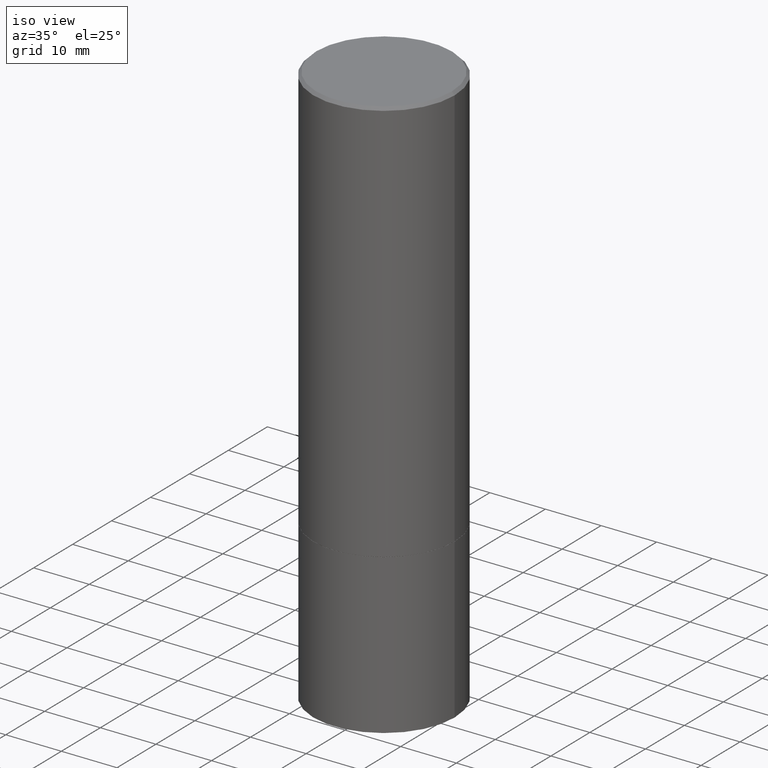
[diagram: clean part render]
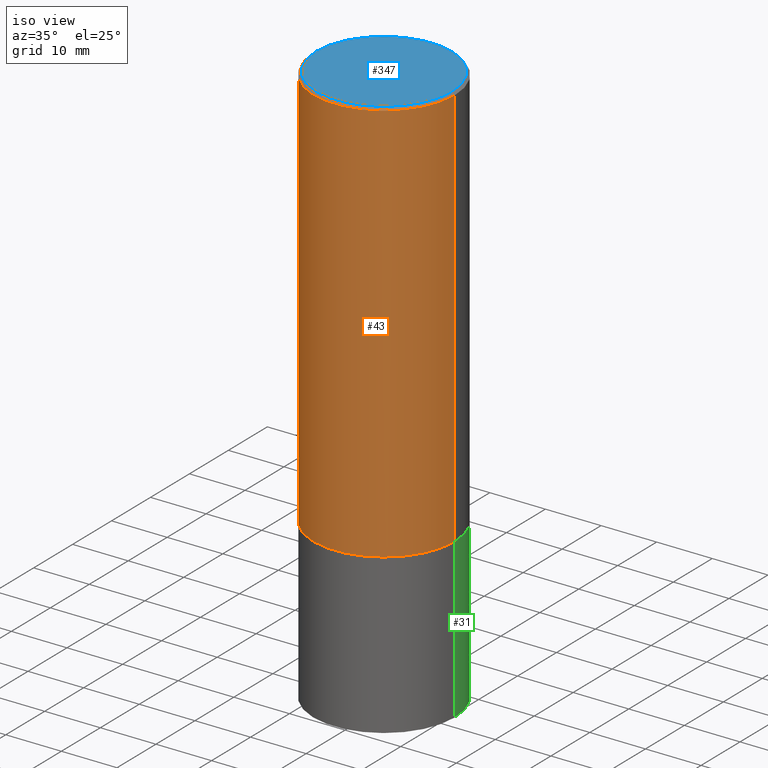
[diagram: same view with three faces highlighted in distinct colors, each labeled with its STEP entity id]
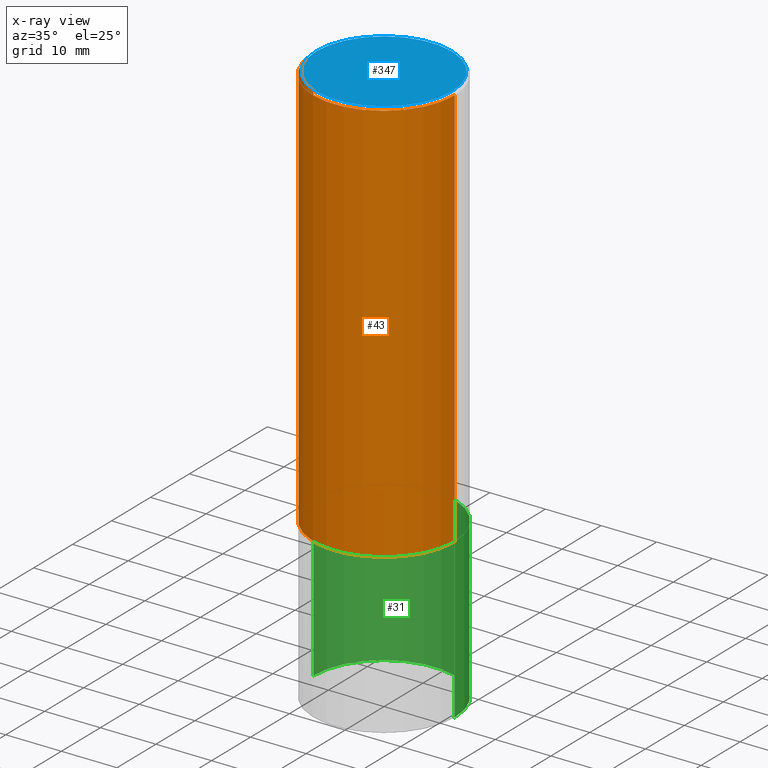
[diagram: x-ray of the same camera — body ghosted, the three highlighted faces saturated]
A machine part, iso view with three faces highlighted in distinct colors.
The next image is the same camera in x-ray (body ghosted, the three faces saturated) — at least one of them is partly hidden behind the body in this view.
Their STEP definitions:

[orange] entity #43 — the highlighted cylindrical surface (partial cylindrical patch) has radius 12.7 mm, axis along (-0, 0, 1).
#6 = CARTESIAN_POINT ( 'NONE',  ( -0.5000000000000000000, -1.499459818505530375E-15, -2.874000000000000110 ) ) ;
#21 = LINE ( 'NONE', #75, #171 ) ;
#25 = LINE ( 'NONE', #166, #220 ) ;
#33 = VERTEX_POINT ( 'NONE', #6 ) ;
#35 = CARTESIAN_POINT ( 'NONE',  ( 7.028277348976082113E-29, -1.003451736783520168E-14, -2.874000000000000110 ) ) ;
#39 = DIRECTION ( 'NONE',  ( 1.000000000000000000, -6.982962677686266711E-15, 0.000000000000000000 ) ) ;
#43 = ADVANCED_FACE ( 'NONE', ( #118 ), #230, .T. ) ;
#52 = EDGE_LOOP ( 'NONE', ( #262, #249, #80, #284 ) ) ;
#66 = CARTESIAN_POINT ( 'NONE',  ( 0.000000000000000000, 0.000000000000000000, 0.000000000000000000 ) ) ;
#68 = DIRECTION ( 'NONE',  ( -2.445468806185136597E-29, 3.491481338843145583E-15, 1.000000000000000000 ) ) ;
#75 = CARTESIAN_POINT ( 'NONE',  ( -0.4999999999999998335, 3.552713678800499746E-15, -2.459467545127452330E-29 ) ) ;
#80 = ORIENTED_EDGE ( 'NONE', *, *, #162, .T. ) ;
#95 = DIRECTION ( 'NONE',  ( 1.000000000000000000, -6.982962677686267499E-15, 4.876176775795936353E-29 ) ) ;
#106 = AXIS2_PLACEMENT_3D ( 'NONE', #66, #297, #95 ) ;
#118 = FACE_OUTER_BOUND ( 'NONE', #52, .T. ) ;
#119 = EDGE_CURVE ( 'NONE', #33, #140, #331, .T. ) ;
#132 = CARTESIAN_POINT ( 'NONE',  ( 0.4999999999999996669, -3.500078625662626713E-15, -0.02000000000000009062 ) ) ;
#137 = DIRECTION ( 'NONE',  ( -2.445468806185136877E-29, 3.491481338843145188E-15, 1.000000000000000000 ) ) ;
#140 = VERTEX_POINT ( 'NONE', #167 ) ;
#152 = EDGE_CURVE ( 'NONE', #33, #307, #21, .T. ) ;
#162 = EDGE_CURVE ( 'NONE', #140, #330, #25, .T. ) ;
#166 = CARTESIAN_POINT ( 'NONE',  ( 0.4999999999999998335, -3.491481338843132566E-15, 2.438088387897967336E-29 ) ) ;
#167 = CARTESIAN_POINT ( 'NONE',  ( 0.5000000000000000000, -1.352599870667833503E-14, -2.874000000000000110 ) ) ;
#169 = AXIS2_PLACEMENT_3D ( 'NONE', #35, #235, #341 ) ;
#171 = VECTOR ( 'NONE', #137, 39.37007874015748143 ) ;
#185 = CARTESIAN_POINT ( 'NONE',  ( -0.4999999999999996669, 3.421651712066267691E-15, -0.02000000000000009062 ) ) ;
#220 = VECTOR ( 'NONE', #222, 39.37007874015748143 ) ;
#222 = DIRECTION ( 'NONE',  ( -2.445468806185136877E-29, 3.491481338843145188E-15, 1.000000000000000000 ) ) ;
#229 = CIRCLE ( 'NONE', #281, 0.4999999999999996669 ) ;
#230 = CYLINDRICAL_SURFACE ( 'NONE', #106, 0.4999999999999998335 ) ;
#235 = DIRECTION ( 'NONE',  ( -2.445468806185136597E-29, 3.491481338843145583E-15, 1.000000000000000000 ) ) ;
#249 = ORIENTED_EDGE ( 'NONE', *, *, #119, .T. ) ;
#262 = ORIENTED_EDGE ( 'NONE', *, *, #152, .F. ) ;
#272 = EDGE_CURVE ( 'NONE', #307, #330, #229, .T. ) ;
#281 = AXIS2_PLACEMENT_3D ( 'NONE', #321, #68, #39 ) ;
#284 = ORIENTED_EDGE ( 'NONE', *, *, #272, .F. ) ;
#297 = DIRECTION ( 'NONE',  ( -2.445468806185136597E-29, 3.491481338843145583E-15, 1.000000000000000000 ) ) ;
#307 = VERTEX_POINT ( 'NONE', #185 ) ;
#321 = CARTESIAN_POINT ( 'NONE',  ( 4.890937612370295054E-31, -6.982962677686322424E-17, -0.02000000000000009062 ) ) ;
#330 = VERTEX_POINT ( 'NONE', #132 ) ;
#331 = CIRCLE ( 'NONE', #169, 0.5000000000000000000 ) ;
#341 = DIRECTION ( 'NONE',  ( 1.000000000000000000, -6.982962677686266711E-15, 0.000000000000000000 ) ) ;

[blue] entity #347 — the highlighted planar face has unit normal (0, -0, -1).
#14 = CARTESIAN_POINT ( 'NONE',  ( -3.131554243005659264E-46, 4.471029511141341874E-32, 1.280553747030123384E-17 ) ) ;
#19 = DIRECTION ( 'NONE',  ( -2.445468806185136597E-29, 3.491481338843145583E-15, 1.000000000000000000 ) ) ;
#51 = CIRCLE ( 'NONE', #117, 0.4799999999999995937 ) ;
#69 = DIRECTION ( 'NONE',  ( 1.000000000000000000, -6.982962677686266711E-15, 4.876036955247133327E-29 ) ) ;
#70 = EDGE_CURVE ( 'NONE', #127, #191, #84, .T. ) ;
#84 = CIRCLE ( 'NONE', #311, 0.4799999999999995937 ) ;
#117 = AXIS2_PLACEMENT_3D ( 'NONE', #14, #19, #328 ) ;
#126 = DIRECTION ( 'NONE',  ( 2.438088387897960049E-29, -3.491481338843145188E-15, -1.000000000000000000 ) ) ;
#127 = VERTEX_POINT ( 'NONE', #181 ) ;
#128 = AXIS2_PLACEMENT_3D ( 'NONE', #350, #126, #354 ) ;
#164 = FACE_OUTER_BOUND ( 'NONE', #306, .T. ) ;
#181 = CARTESIAN_POINT ( 'NONE',  ( 0.4799999999999995937, -3.396558832296479732E-15, 1.280553747032483033E-17 ) ) ;
#191 = VERTEX_POINT ( 'NONE', #336 ) ;
#203 = CARTESIAN_POINT ( 'NONE',  ( -3.131554243005659264E-46, 4.471029511141341874E-32, 1.280553747030123384E-17 ) ) ;
#252 = PLANE ( 'NONE',  #128 ) ;
#253 = ORIENTED_EDGE ( 'NONE', *, *, #70, .T. ) ;
#265 = ORIENTED_EDGE ( 'NONE', *, *, #293, .T. ) ;
#275 = DIRECTION ( 'NONE',  ( -2.445468806185136597E-29, 3.491481338843145583E-15, 1.000000000000000000 ) ) ;
#293 = EDGE_CURVE ( 'NONE', #191, #127, #51, .T. ) ;
#306 = EDGE_LOOP ( 'NONE', ( #265, #253 ) ) ;
#311 = AXIS2_PLACEMENT_3D ( 'NONE', #203, #275, #69 ) ;
#328 = DIRECTION ( 'NONE',  ( 1.000000000000000000, -6.982962677686266711E-15, 4.876036955247133327E-29 ) ) ;
#336 = CARTESIAN_POINT ( 'NONE',  ( -0.4799999999999995937, 3.386736898677836436E-15, 1.280553747027767124E-17 ) ) ;
#347 = ADVANCED_FACE ( 'NONE', ( #164 ), #252, .F. ) ;
#350 = CARTESIAN_POINT ( 'NONE',  ( 3.351822085289404787E-15, 0.4799999999999995937, -1.669508273909557867E-15 ) ) ;
#354 = DIRECTION ( 'NONE',  ( -1.000000000000000000, 6.982962677686265922E-15, -4.876176775795935793E-29 ) ) ;

[green] entity #31 — the highlighted cylindrical surface (partial cylindrical patch) has radius 12.7 mm, axis along (-0, 0, 1).
#8 = CARTESIAN_POINT ( 'NONE',  ( -0.5000000000000000000, 3.552713678800500929E-15, -2.459467545127452891E-29 ) ) ;
#13 = VERTEX_POINT ( 'NONE', #309 ) ;
#17 = DIRECTION ( 'NONE',  ( 1.000000000000000000, -6.982962677686266711E-15, 0.000000000000000000 ) ) ;
#31 = ADVANCED_FACE ( 'NONE', ( #332 ), #79, .T. ) ;
#53 = VECTOR ( 'NONE', #324, 39.37007874015748143 ) ;
#57 = DIRECTION ( 'NONE',  ( 1.000000000000000000, -6.982962677686266711E-15, 4.876176775795935793E-29 ) ) ;
#61 = EDGE_CURVE ( 'NONE', #213, #130, #161, .T. ) ;
#65 = CARTESIAN_POINT ( 'NONE',  ( 0.5000000000000000000, -1.745740669421571411E-14, -4.000000000000000000 ) ) ;
#79 = CYLINDRICAL_SURFACE ( 'NONE', #112, 0.5000000000000000000 ) ;
#81 = EDGE_CURVE ( 'NONE', #13, #174, #270, .T. ) ;
#90 = CARTESIAN_POINT ( 'NONE',  ( 0.5000000000000000000, -3.491481338843133355E-15, 2.438088387897967896E-29 ) ) ;
#92 = CIRCLE ( 'NONE', #182, 0.5000000000000000000 ) ;
#109 = ORIENTED_EDGE ( 'NONE', *, *, #358, .T. ) ;
#112 = AXIS2_PLACEMENT_3D ( 'NONE', #316, #337, #57 ) ;
#130 = VERTEX_POINT ( 'NONE', #351 ) ;
#143 = ORIENTED_EDGE ( 'NONE', *, *, #81, .T. ) ;
#151 = DIRECTION ( 'NONE',  ( -2.445468806185136877E-29, 3.491481338843145188E-15, 1.000000000000000000 ) ) ;
#161 = LINE ( 'NONE', #90, #215 ) ;
#163 = EDGE_LOOP ( 'NONE', ( #109, #143, #239, #241 ) ) ;
#174 = VERTEX_POINT ( 'NONE', #224 ) ;
#178 = CIRCLE ( 'NONE', #301, 0.5000000000000000000 ) ;
#182 = AXIS2_PLACEMENT_3D ( 'NONE', #318, #238, #348 ) ;
#213 = VERTEX_POINT ( 'NONE', #65 ) ;
#215 = VECTOR ( 'NONE', #151, 39.37007874015748143 ) ;
#224 = CARTESIAN_POINT ( 'NONE',  ( -0.5000000000000000000, -8.449253423472813367E-15, -2.875000000000000000 ) ) ;
#238 = DIRECTION ( 'NONE',  ( -2.445468806185136597E-29, 3.491481338843145583E-15, 1.000000000000000000 ) ) ;
#239 = ORIENTED_EDGE ( 'NONE', *, *, #259, .F. ) ;
#241 = ORIENTED_EDGE ( 'NONE', *, *, #61, .F. ) ;
#259 = EDGE_CURVE ( 'NONE', #130, #174, #92, .T. ) ;
#270 = LINE ( 'NONE', #8, #53 ) ;
#277 = CARTESIAN_POINT ( 'NONE',  ( 9.781875224740546387E-29, -1.396592535537258233E-14, -4.000000000000000000 ) ) ;
#279 = DIRECTION ( 'NONE',  ( -2.445468806185136597E-29, 3.491481338843145583E-15, 1.000000000000000000 ) ) ;
#301 = AXIS2_PLACEMENT_3D ( 'NONE', #277, #279, #17 ) ;
#309 = CARTESIAN_POINT ( 'NONE',  ( -0.5000000000000000000, -8.449253423472813367E-15, -4.000000000000000000 ) ) ;
#316 = CARTESIAN_POINT ( 'NONE',  ( 0.000000000000000000, 0.000000000000000000, 0.000000000000000000 ) ) ;
#318 = CARTESIAN_POINT ( 'NONE',  ( 7.030722817782267716E-29, -1.003800884917404311E-14, -2.875000000000000000 ) ) ;
#324 = DIRECTION ( 'NONE',  ( -2.445468806185136877E-29, 3.491481338843145188E-15, 1.000000000000000000 ) ) ;
#332 = FACE_OUTER_BOUND ( 'NONE', #163, .T. ) ;
#337 = DIRECTION ( 'NONE',  ( -2.445468806185136597E-29, 3.491481338843145583E-15, 1.000000000000000000 ) ) ;
#348 = DIRECTION ( 'NONE',  ( 1.000000000000000000, -6.982962677686266711E-15, 0.000000000000000000 ) ) ;
#351 = CARTESIAN_POINT ( 'NONE',  ( 0.5000000000000000000, -1.352949018801717646E-14, -2.875000000000000000 ) ) ;
#358 = EDGE_CURVE ( 'NONE', #213, #13, #178, .T. ) ;